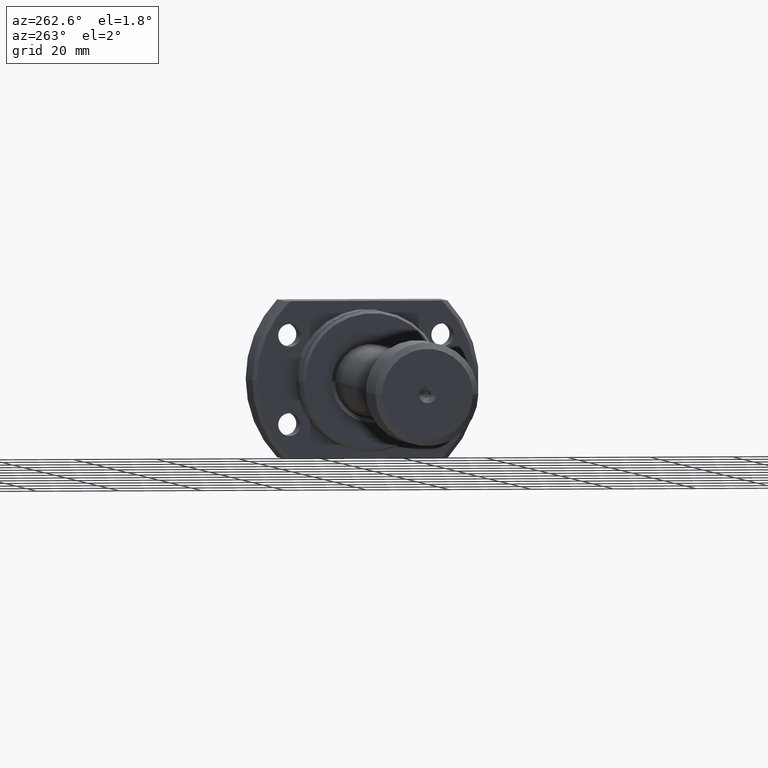
[diagram: clean part render]
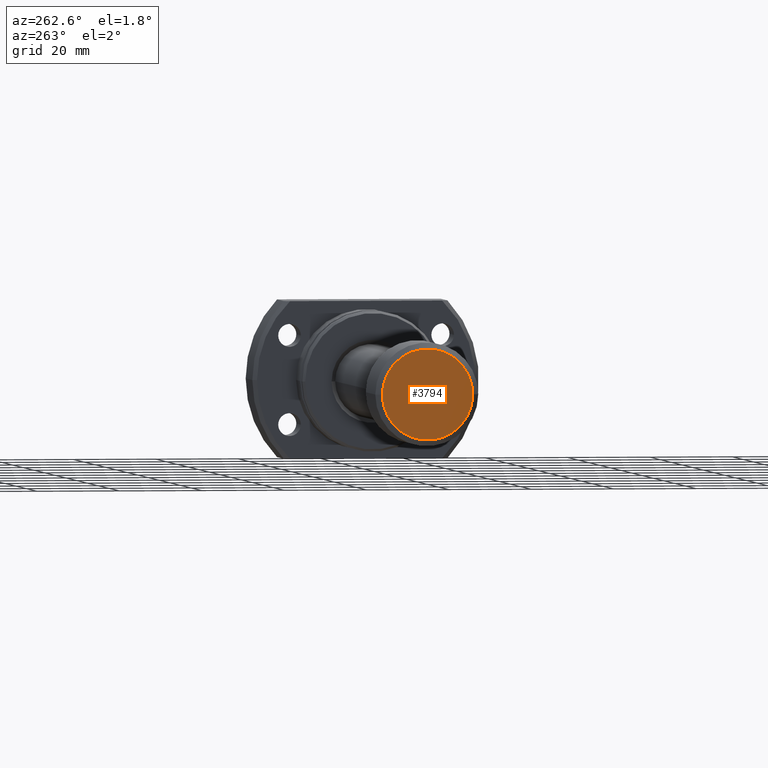
[diagram: same view with one face highlighted and labeled with its STEP entity id]
A machine part, auxiliary view. The second image highlights one B-rep face of the part: STEP entity #3794.
In plain terms, the highlighted planar face has unit normal (-1, -0, 0).
Its self-contained STEP definition (entity closure, byte-faithful):
#2 = CIRCLE ( 'NONE', #3924, 11.00000000000000178 ) ;
#75 = CIRCLE ( 'NONE', #860, 2.075000000000021494 ) ;
#194 = DIRECTION ( 'NONE',  ( 1.069542322069065647E-17, -1.000000000000000000, 0.000000000000000000 ) ) ;
#242 = VERTEX_POINT ( 'NONE', #4105 ) ;
#416 = EDGE_LOOP ( 'NONE', ( #2153, #4176 ) ) ;
#537 = EDGE_CURVE ( 'NONE', #1676, #4454, #2, .T. ) ;
#860 = AXIS2_PLACEMENT_3D ( 'NONE', #2587, #1765, #1828 ) ;
#1097 = DIRECTION ( 'NONE',  ( -1.000000000000000000, -1.069542322069065801E-17, 0.000000000000000000 ) ) ;
#1204 = EDGE_CURVE ( 'NONE', #242, #4760, #75, .T. ) ;
#1300 = AXIS2_PLACEMENT_3D ( 'NONE', #1523, #1097, #1445 ) ;
#1332 = CARTESIAN_POINT ( 'NONE',  ( 1.111812168206894135E-15, 11.00000000000000178, 0.000000000000000000 ) ) ;
#1445 = DIRECTION ( 'NONE',  ( 1.069542322069065801E-17, -1.000000000000000000, 0.000000000000000000 ) ) ;
#1523 = CARTESIAN_POINT ( 'NONE',  ( 6.147309118172456842E-16, 6.574807268726511244E-33, 0.000000000000000000 ) ) ;
#1561 = CIRCLE ( 'NONE', #2989, 2.075000000000021494 ) ;
#1676 = VERTEX_POINT ( 'NONE', #3133 ) ;
#1765 = DIRECTION ( 'NONE',  ( 1.000000000000000000, 1.069542322069065801E-17, 0.000000000000000000 ) ) ;
#1828 = DIRECTION ( 'NONE',  ( 1.069542322069063644E-17, -1.000000000000000000, 0.000000000000000000 ) ) ;
#2153 = ORIENTED_EDGE ( 'NONE', *, *, #1204, .T. ) ;
#2155 = DIRECTION ( 'NONE',  ( 1.069542322069063644E-17, -1.000000000000000000, 0.000000000000000000 ) ) ;
#2286 = CIRCLE ( 'NONE', #3588, 11.00000000000000178 ) ;
#2584 = CARTESIAN_POINT ( 'NONE',  ( 1.229461823634491368E-15, 1.314961453745302249E-32, 0.000000000000000000 ) ) ;
#2587 = CARTESIAN_POINT ( 'NONE',  ( 6.147309118172456842E-16, 0.000000000000000000, 0.000000000000000000 ) ) ;
#2618 = DIRECTION ( 'NONE',  ( 1.069542322069065647E-17, -1.000000000000000000, 0.000000000000000000 ) ) ;
#2976 = DIRECTION ( 'NONE',  ( -1.000000000000000000, -1.069542322069065801E-17, -0.000000000000000000 ) ) ;
#2989 = AXIS2_PLACEMENT_3D ( 'NONE', #3250, #4289, #2155 ) ;
#3010 = PLANE ( 'NONE',  #1300 ) ;
#3133 = CARTESIAN_POINT ( 'NONE',  ( 1.347111479062088602E-15, -11.00000000000000178, 1.438959988998140160E-15 ) ) ;
#3250 = CARTESIAN_POINT ( 'NONE',  ( 6.147309118172456842E-16, 0.000000000000000000, 0.000000000000000000 ) ) ;
#3366 = FACE_OUTER_BOUND ( 'NONE', #4129, .T. ) ;
#3559 = DIRECTION ( 'NONE',  ( -1.000000000000000000, -1.069542322069065801E-17, -0.000000000000000000 ) ) ;
#3588 = AXIS2_PLACEMENT_3D ( 'NONE', #3982, #3559, #194 ) ;
#3590 = ORIENTED_EDGE ( 'NONE', *, *, #4513, .T. ) ;
#3713 = ORIENTED_EDGE ( 'NONE', *, *, #537, .T. ) ;
#3794 = ADVANCED_FACE ( 'NONE', ( #4468, #3366 ), #3010, .T. ) ;
#3924 = AXIS2_PLACEMENT_3D ( 'NONE', #2584, #2976, #2618 ) ;
#3982 = CARTESIAN_POINT ( 'NONE',  ( 1.229461823634491368E-15, 1.314961453745302249E-32, 0.000000000000000000 ) ) ;
#4105 = CARTESIAN_POINT ( 'NONE',  ( 6.147309118172456842E-16, 0.000000000000000000, 2.075000000000021494 ) ) ;
#4129 = EDGE_LOOP ( 'NONE', ( #3590, #3713 ) ) ;
#4176 = ORIENTED_EDGE ( 'NONE', *, *, #4690, .T. ) ;
#4267 = CARTESIAN_POINT ( 'NONE',  ( 6.147309118172456842E-16, 2.541142108230784202E-16, -2.075000000000021494 ) ) ;
#4289 = DIRECTION ( 'NONE',  ( 1.000000000000000000, 1.069542322069065801E-17, 0.000000000000000000 ) ) ;
#4454 = VERTEX_POINT ( 'NONE', #1332 ) ;
#4468 = FACE_BOUND ( 'NONE', #416, .T. ) ;
#4513 = EDGE_CURVE ( 'NONE', #4454, #1676, #2286, .T. ) ;
#4690 = EDGE_CURVE ( 'NONE', #4760, #242, #1561, .T. ) ;
#4760 = VERTEX_POINT ( 'NONE', #4267 ) ;